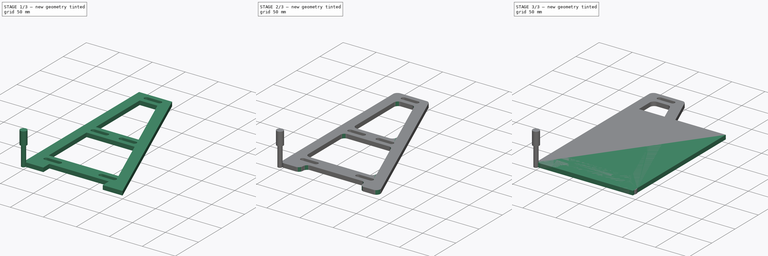
[diagram: build sequence overview — one tinted view per stage of 3, left to right]
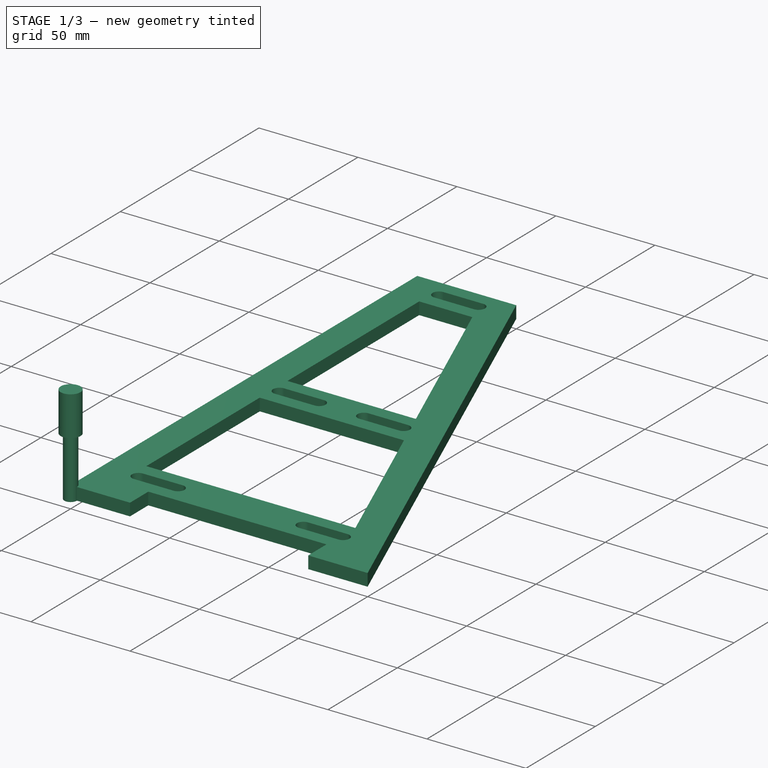
[diagram: stage 1 of 3 — iso view after this stage's code; geometry added in this stage tinted green]
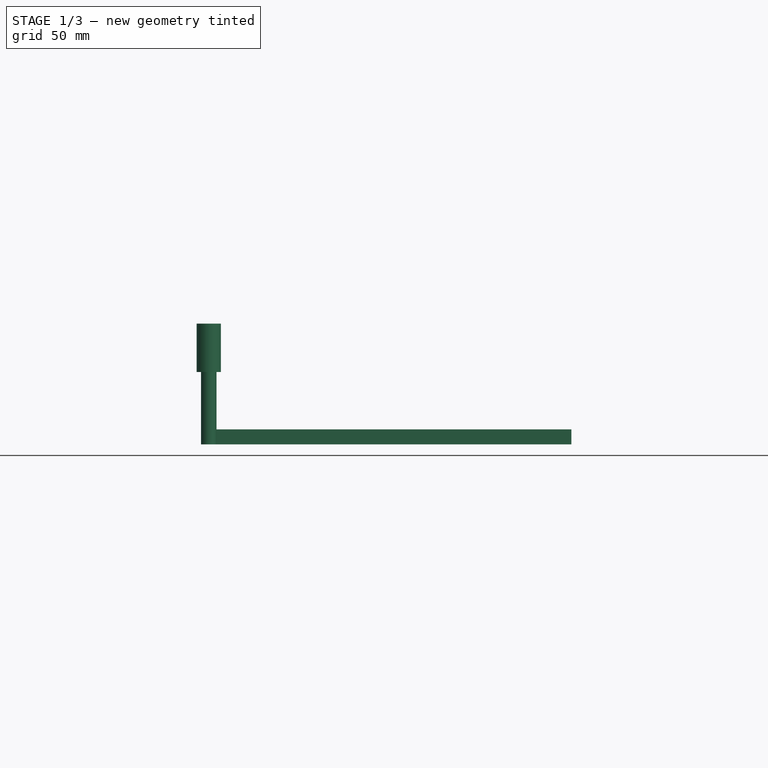
[diagram: stage 1 of 3 — front view after this stage's code; geometry added in this stage tinted green]
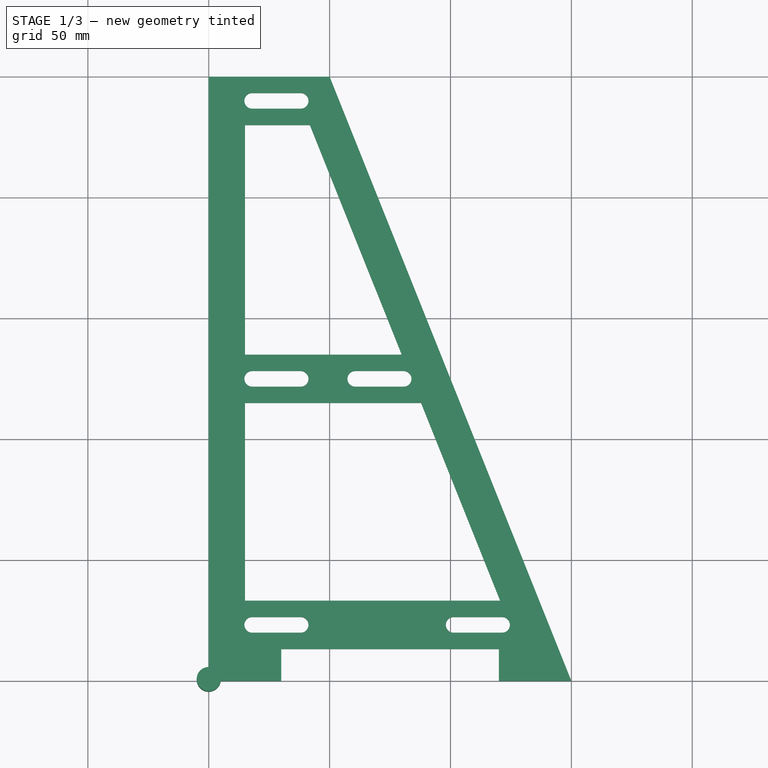
[diagram: stage 1 of 3 — top view after this stage's code; geometry added in this stage tinted green]
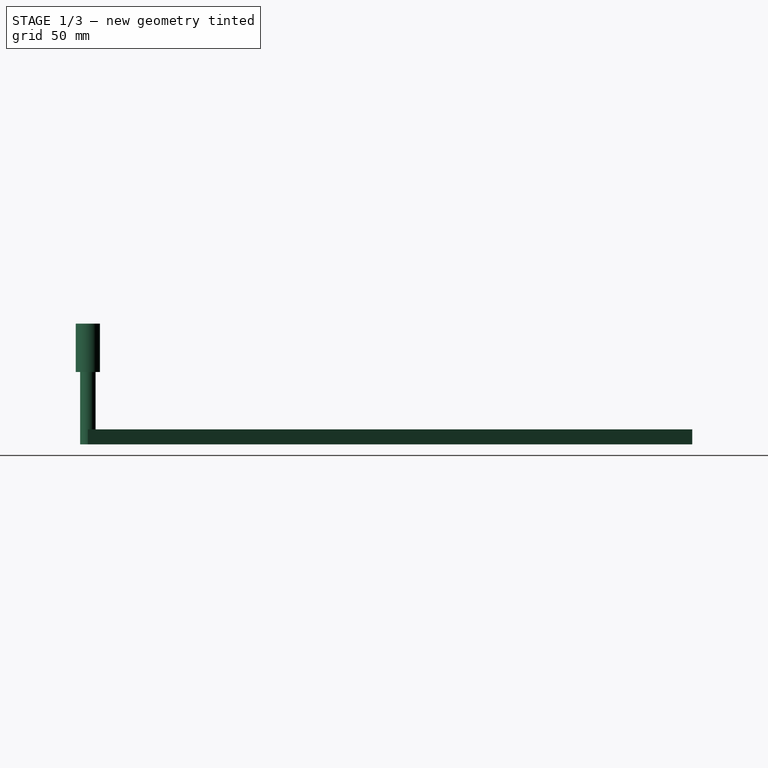
[diagram: stage 1 of 3 — right view after this stage's code; geometry added in this stage tinted green]
FCSTD DOCUMENT  (FreeCAD 0.20R27078 (Git))
Label: Stand
License: All rights reserved
LicenseURL: http://en.wikipedia.org/wiki/All_rights_reserved
objects: Path::FeaturePython×4, Part::FeaturePython×3, App::DocumentObjectGroup×2, Sketcher::SketchObject×1, PartDesign::Pad×1, PartDesign::Fillet×1, PartDesign::Body×1, App::FeaturePython×1, Path::FeatureCompoundPython×1, Spreadsheet::Sheet×1
note: 11 computed .brp shape members not serialized (recipe doc carries the construction recipe); baked Part::Feature solids carry a one-line shape summary decoded from their .brp

FEATURE [Sketcher::SketchObject] Sketch
  FullyConstrained = true
  MapMode = 5
  Support = -> [XY_Plane]
  expr: Constraints[26] = <<Spreadsheet>>.Height
  expr: Constraints[27] = <<Spreadsheet>>.Top
  expr: Constraints[29] = <<Spreadsheet>>.Bottom
  expr: Constraints[52] = <<Spreadsheet>>.SlotSize
  expr: Constraints[53] = <<Spreadsheet>>.Tool
  expr: Constraints[67] = <<Spreadsheet>>.Tool
  expr: Constraints[68] = <<Spreadsheet>>.Tool
  expr: Constraints[70] = <<Spreadsheet>>.SlotSize
  expr: Constraints[71] = <<Spreadsheet>>.SlotSize
  expr: Constraints[82] = <<Spreadsheet>>.Tool
  expr: Constraints[83] = <<Spreadsheet>>.SlotSize
  expr: Constraints[92] = <<Spreadsheet>>.SlotSize
  expr: Constraints[93] = <<Spreadsheet>>.Tool
  expr: Constraints[96] = <<Spreadsheet>>.SlotCentre
  sketch-geometry (36):
    g0: LineSegment StartX=0 StartY=250 StartZ=0 EndX=50 EndY=250 EndZ=0
    g1: LineSegment StartX=150 StartY=0 StartZ=0 EndX=120 EndY=0 EndZ=0
    g2: LineSegment StartX=0 StartY=0 StartZ=0 EndX=0 EndY=250 EndZ=0
    g3: LineSegment StartX=50 StartY=250 StartZ=0 EndX=150 EndY=0 EndZ=0
    g4: LineSegment StartX=15 StartY=230 StartZ=0 EndX=15 EndY=135 EndZ=0
    g5: LineSegment StartX=15 StartY=135 StartZ=0 EndX=79.8445 EndY=135 EndZ=0
    g6: LineSegment StartX=79.8445 StartY=135 StartZ=0 EndX=41.8445 EndY=230 EndZ=0
    g7: LineSegment StartX=41.8445 StartY=230 StartZ=0 EndX=15 EndY=230 EndZ=0
    g8: LineSegment StartX=15 StartY=115 StartZ=0 EndX=15 EndY=33.2 EndZ=0
    g9: LineSegment StartX=15 StartY=33.2 StartZ=0 EndX=120.565 EndY=33.2 EndZ=0
    g10: LineSegment StartX=120.565 StartY=33.2 StartZ=0 EndX=87.8445 EndY=115 EndZ=0
    g11: LineSegment StartX=87.8445 StartY=115 StartZ=0 EndX=15 EndY=115 EndZ=0
    g12: LineSegment StartX=120 StartY=0 StartZ=0 EndX=120 EndY=13.2 EndZ=0
    g13: LineSegment StartX=120 StartY=13.2 StartZ=0 EndX=30 EndY=13.2 EndZ=0
    g14: LineSegment StartX=30 StartY=13.2 StartZ=0 EndX=30 EndY=0 EndZ=0
    g15: LineSegment StartX=30 StartY=0 StartZ=0 EndX=0 EndY=0 EndZ=0
    g16: ArcOfCircle CenterX=18 CenterY=240 CenterZ=0 NormalX=0 NormalY=0 NormalZ=1 AngleXU=0 Radius=3.25 StartAngle=1.5708 EndAngle=4.71239
    g17: ArcOfCircle CenterX=38 CenterY=240 CenterZ=0 NormalX=0 NormalY=0 NormalZ=1 AngleXU=0 Radius=3.25 StartAngle=4.71239 EndAngle=7.85398
    g18: LineSegment StartX=18 StartY=236.75 StartZ=0 EndX=38 EndY=236.75 EndZ=0
    g19: LineSegment StartX=38 StartY=243.25 StartZ=0 EndX=18 EndY=243.25 EndZ=0
    g20: ArcOfCircle CenterX=60.6134 CenterY=125 CenterZ=0 NormalX=0 NormalY=0 NormalZ=1 AngleXU=0 Radius=3.25 StartAngle=1.5708 EndAngle=4.71239
    g21: ArcOfCircle CenterX=80.6134 CenterY=125 CenterZ=0 NormalX=0 NormalY=0 NormalZ=1 AngleXU=0 Radius=3.25 StartAngle=4.71239 EndAngle=7.85398
    g22: LineSegment StartX=60.6134 StartY=121.75 StartZ=0 EndX=80.6134 EndY=121.75 EndZ=0
    g23: LineSegment StartX=80.6134 StartY=128.25 StartZ=0 EndX=60.6134 EndY=128.25 EndZ=0
    g24: ArcOfCircle CenterX=18 CenterY=125 CenterZ=0 NormalX=0 NormalY=0 NormalZ=1 AngleXU=0 Radius=3.25 StartAngle=1.5708 EndAngle=4.71239
    g25: ArcOfCircle CenterX=38 CenterY=125 CenterZ=0 NormalX=0 NormalY=0 NormalZ=1 AngleXU=0 Radius=3.25 StartAngle=4.71239 EndAngle=7.85398
    g26: LineSegment StartX=18 StartY=121.75 StartZ=0 EndX=38 EndY=121.75 EndZ=0
    g27: LineSegment StartX=38 StartY=128.25 StartZ=0 EndX=18 EndY=128.25 EndZ=0
    g28: ArcOfCircle CenterX=18 CenterY=23.2 CenterZ=0 NormalX=0 NormalY=0 NormalZ=1 AngleXU=0 Radius=3.25 StartAngle=1.5708 EndAngle=4.71239
    g29: ArcOfCircle CenterX=38 CenterY=23.2 CenterZ=0 NormalX=0 NormalY=0 NormalZ=1 AngleXU=0 Radius=3.25 StartAngle=4.71239 EndAngle=7.85398
    g30: LineSegment StartX=18 StartY=19.95 StartZ=0 EndX=38 EndY=19.95 EndZ=0
    g31: LineSegment StartX=38 StartY=26.45 StartZ=0 EndX=18 EndY=26.45 EndZ=0
    g32: ArcOfCircle CenterX=101.333 CenterY=23.2 CenterZ=0 NormalX=0 NormalY=0 NormalZ=1 AngleXU=0 Radius=3.25 StartAngle=1.5708 EndAngle=4.71239
    g33: ArcOfCircle CenterX=121.333 CenterY=23.2 CenterZ=0 NormalX=0 NormalY=0 NormalZ=1 AngleXU=0 Radius=3.25 StartAngle=4.71239 EndAngle=7.85398
    g34: LineSegment StartX=101.333 StartY=19.95 StartZ=0 EndX=121.333 EndY=19.95 EndZ=0
    g35: LineSegment StartX=121.333 StartY=26.45 StartZ=0 EndX=101.333 EndY=26.45 EndZ=0
  constraints (97):
    c: Coincident(g15,g2)
    c: Coincident(g2,g0)
    c: Horizontal(g0)
    c: Horizontal(g1)
    c: Vertical(g2)
    c: Vertical(g4)
    c: Coincident(g4,g5)
    c: Horizontal(g5)
    c: Coincident(g5,g6)
    c: Coincident(g6,g7)
    c: Coincident(g7,g4)
    c: Vertical(g8)
    c: Coincident(g8,g9)
    c: Coincident(g9,g10)
    c: Coincident(g10,g11)
    c: Coincident(g11,g8)
    c: Horizontal(g11)
    c: Coincident(g12,g13)
    c: Coincident(g13,g14)
    c: Horizontal(g13)
    c: Vertical(g12)
    c: Vertical(g14)
    c: Coincident(g15,g-1)
    c: Coincident(g0,g3)
    c: Parallel(g3,g10)
    c: Parallel(g3,g6)
    c: DistanceY(g2,g2) = 250
    c: DistanceX(g0,g0) = 50
    c: Coincident(g3,g1)
    c: DistanceX(g2,g1) = 150
    c: DistanceX(g15,g15) = 30
    c: DistanceX(g1,g1) = 30
    c: Coincident(g12,g1)
    c: Parallel(g13,g9)
    c: Parallel(g5,g7)
    c: Coincident(g14,g15)
    c: DistanceY(g14,g13) = 13.2
    c: DistanceY(g13,g8) = 20
    c: DistanceY(g8,g4) = 20
    c: DistanceY(g4,g0) = 20
    c: DistanceX(g2,g8) = 15
    c: DistanceX(g2,g4) = 15
    c: Horizontal(g15)
    c: Distance(g5,g3) = 15
    c: Distance(g10,g3) = 15
    c: DistanceY(g1,g2) = 0
    c: Tangent(g16,g18) = -1.5708
    c: Tangent(g18,g17) = -1.5708
    c: Tangent(g17,g19) = -1.5708
    c: Tangent(g19,g16) = -1.5708
    c: Equal(g16,g17)
    c: Horizontal(g18)
    c: DistanceX(g16,g17) = 20
    c: Diameter(g17) = 6.5
    c: DistanceY(g4,g16) = 10
    c: DistanceX(g0,g16) = 18
    c: Tangent(g20,g22) = -1.5708
    c: Tangent(g22,g21) = -1.5708
    c: Tangent(g21,g23) = -1.5708
    c: Tangent(g23,g20) = -1.5708
    c: Equal(g20,g21)
    c: Horizontal(g22)
    c: Tangent(g24,g26) = -1.5708
    c: Tangent(g26,g25) = -1.5708
    c: Tangent(g25,g27) = -1.5708
    c: Tangent(g27,g24) = -1.5708
    c: Equal(g24,g25)
    c: Diameter(g21) = 6.5
    c: Diameter(g24) = 6.5
    c: Parallel(g27,g5)
    c: DistanceX(g20,g21) = 20
    c: DistanceX(g24,g25) = 20
    c: DistanceX(g2,g24) = 18
    c: Distance(g21,g3) = 18
    c: DistanceY(g8,g24) = 10
    c: DistanceY(g10,g21) = 10
    c: Tangent(g28,g30) = -1.5708
    c: Tangent(g30,g29) = -1.5708
    c: Tangent(g29,g31) = -1.5708
    c: Tangent(g31,g28) = -1.5708
    c: Equal(g28,g29)
    c: Horizontal(g30)
    c: Diameter(g29) = 6.5
    c: DistanceX(g28,g29) = 20
    c: DistanceX(g2,g28) = 18
    c: DistanceY(g13,g28) = 10
    c: Tangent(g32,g34) = -1.5708
    c: Tangent(g34,g33) = -1.5708
    c: Tangent(g33,g35) = -1.5708
    c: Tangent(g35,g32) = -1.5708
    c: Equal(g32,g33)
    c: Horizontal(g34)
    c: DistanceX(g32,g33) = 20
    c: Diameter(g33) = 6.5
    c: Distance(g33,g3) = 18
    c: DistanceY(g12,g33) = 10
    c: DistanceY(g2,g24) = 125
FEATURE [PartDesign::Pad] Pad
  Direction = (0,0,1)
  Length = 6.25
  Length2 = 100
  Profile = -> Sketch
  ReferenceAxis = -> Sketch [N_Axis]
  Type = 0
  expr: Length = <<Spreadsheet>>.Thickness
FEATURE [Part::FeaturePython] ToolBit001  label="6.4mm Endmill"  # Path/CAM toolbit (typed FeaturePython)
  BitPropertyNames = Chipload | CuttingEdgeHeight | Diameter | Flutes | Length | Material | ShankDiameter
  BitShape = <path>
  Chipload = 0
  CuttingEdgeHeight = 30
  Diameter = 6.4
  File = <userpath>/MensShed/CNCRouter/FreeCAD/Bit/6.4mm_Endmill.fctb
  Flutes = 0
  Length = 50
  Material = 0
  ShankDiameter = 10
  ShapeName = endmill
FEATURE [Path::FeaturePython] __4mm_Endmill  label="6.4mm Endmill001"  # Path/CAM operation (typed FeaturePython)
  HorizFeed = 10
  HorizRapid = 0
  SpindleDir = 0
  SpindleSpeed = 10000
  Tool = -> ToolBit001
  ToolNumber = 2
  VertFeed = 10
  VertRapid = 0
  expr: HorizRapid = SetupSheet.HorizRapid
  expr: VertRapid = SetupSheet.VertRapid
FEATURE [App::DocumentObjectGroup] Tools
  Group = -> [__4mm_Endmill]
FEATURE [Path::FeaturePython] Profile  label="Outside"  # Path/CAM operation (typed FeaturePython)
  Active = true
  AreaParams:
    Tolerance = 1e-07
    FitArcs = True
    Simplify = False
    CleanDistance = 0.0
    Accuracy = 0.01
    Unit = 1.0
    MinArcPoints = 4
    MaxArcPoints = 100
    ClipperScale = 10000000.0
    Fill = 0
    Coplanar = 0
    Reorient = True
    Outline = False
    Explode = False
    OpenMode = 0
    Deflection = 0.01
    SubjectFill = 0
    ClipFill = 0
    Offset = 3.2
    ExtraPass = 0
    Stepover = 0.0
    LastStepover = 0.0
    JoinType = 0
    EndType = 0
    MiterLimit = 2.0
    RoundPrecision = 0.0
    PocketMode = 0
    ToolRadius = 1.0
    PocketExtraOffset = 0.0
    PocketStepover = 0.0
    PocketLastStepover = 0.0
    FromCenter = False
    Angle = 45.0
    AngleShift = 0.0
    Shift = 0.0
    Thicken = False
    SectionCount = -1
    Stepdown = 1.0
    SectionOffset = 0.0
    SectionTolerance = 1e-06
    SectionMode = 2
    Project = False
  ClearanceHeight = 11.25
  CoolantMode = None
  CycleTime = 00:04:01
  Direction = 0
  FinalDepth = 0
  HandleMultipleFeatures = 0
  JoinType = 0
  MiterLimit = 0.1
  OffsetExtra = 0
  OpFinalDepth = 0
  OpStartDepth = 6.25
  OpStockZMax = 6.25
  OpStockZMin = 0
  OpToolDiameter = 6.4
  PathParams = {'orientation': 1, 'feedrate': 10.0, 'feedrate_v': 10.0, 'verbose': True, 'resume_height': 9.25, 'retraction': 11.25, 'return_end': True, 'preamble': False}
  SafeHeight = 9.25
  Side = 0
  StartDepth = 6.25
  StartPoint = (0,0,0)
  StepDown = 3
  ToolController = -> __4mm_Endmill
  UseComp = true
  UseStartPoint = false
  processCircles = false
  processHoles = false
  processPerimeter = true
  expr: ClearanceHeight = OpStockZMax + SetupSheet.ClearanceHeightOffset
  expr: FinalDepth = OpFinalDepth
  expr: SafeHeight = OpStockZMax + SetupSheet.SafeHeightOffset
  expr: StartDepth = OpStartDepth
  expr: StepDown = 3
FEATURE [Path::FeaturePython] Profile001  label="Inside"  # Path/CAM operation (typed FeaturePython)
  Active = true
  AreaParams:
    Tolerance = 1e-07
    FitArcs = True
    Simplify = False
    CleanDistance = 0.0
    Accuracy = 0.01
    Unit = 1.0
    MinArcPoints = 4
    MaxArcPoints = 100
    ClipperScale = 10000000.0
    Fill = 0
    Coplanar = 0
    Reorient = True
    Outline = False
    Explode = False
    OpenMode = 0
    Deflection = 0.01
    SubjectFill = 0
    ClipFill = 0
    Offset = -3.2
    ExtraPass = 0
    Stepover = 0.0
    LastStepover = 0.0
    JoinType = 0
    EndType = 0
    MiterLimit = 2.0
    RoundPrecision = 0.0
    PocketMode = 0
    ToolRadius = 1.0
    PocketExtraOffset = 0.0
    PocketStepover = 0.0
    PocketLastStepover = 0.0
    FromCenter = False
    Angle = 45.0
    AngleShift = 0.0
    Shift = 0.0
    Thicken = False
    SectionCount = -1
    Stepdown = 1.0
    SectionOffset = 0.0
    SectionTolerance = 1e-06
    SectionMode = 2
    Project = False
  Base = -> [Clone]
  ClearanceHeight = 11.25
  CoolantMode = None
  CycleTime = 00:04:40
  Direction = 0
  FinalDepth = 0
  HandleMultipleFeatures = 0
  JoinType = 0
  MiterLimit = 0.1
  OffsetExtra = 0
  OpFinalDepth = 6.25
  OpStartDepth = 9.25
  OpStockZMax = 6.25
  OpStockZMin = 0
  OpToolDiameter = 6.4
  PathParams = {'orientation': 1, 'feedrate': 10.0, 'feedrate_v': 10.0, 'verbose': True, 'resume_height': 9.25, 'retraction': 11.25, 'return_end': True, 'preamble': False, 'start': Vector (38.04182585126915, 138.20000014999994, 11.25)}
  SafeHeight = 9.25
  Side = 1
  StartDepth = 6.25
  StartPoint = (0,0,0)
  StepDown = 3
  ToolController = -> __4mm_Endmill
  UseComp = true
  UseStartPoint = false
  processCircles = false
  processHoles = false
  processPerimeter = true
  expr: ClearanceHeight = OpStockZMax + SetupSheet.ClearanceHeightOffset
  expr: FinalDepth = 0
  expr: SafeHeight = OpStockZMax + SetupSheet.SafeHeightOffset
  expr: StartDepth = 6.25
  expr: StepDown = 3
FEATURE [Path::FeatureCompoundPython] Operations  # Path/CAM operation (typed FeaturePython)
  Group = -> [Profile,Profile001]
  UsePlacements = false
FEATURE [Path::FeaturePython] Job  # Path/CAM operation (typed FeaturePython)
  CycleTime = 00:08:41
  Fixtures = G54
  GeometryTolerance = 0.01
  Model = -> Model
  Operations = -> Operations
  OrderOutputBy = 0
  PostProcessor = 7
  PostProcessorOutputFile = %D/%d
  SetupSheet = -> SetupSheet
  SplitOutput = false
  Stock = -> Stock001
  Tools = -> Tools
FEATURE [Spreadsheet::Sheet] Spreadsheet
  cells = A2=Material Thickness; B2(Thickness)=6.25; A3=Tool Size; B3(Tool)=6.5; A5=Height; B5(Height)=250; A6=Bottom Width; B6(Bottom)=150; A7=Top Width; B7(Top)=50; A8=SlotSize; B8(SlotSize)=20; A9=TongueSize; B9(TongueSize)==B8 + B3; A10=Centre; B10(SlotCentre)==B5 / 2
note: 1 file-system path scrubbed to <path> (originals preserved in the JSON sidecar)
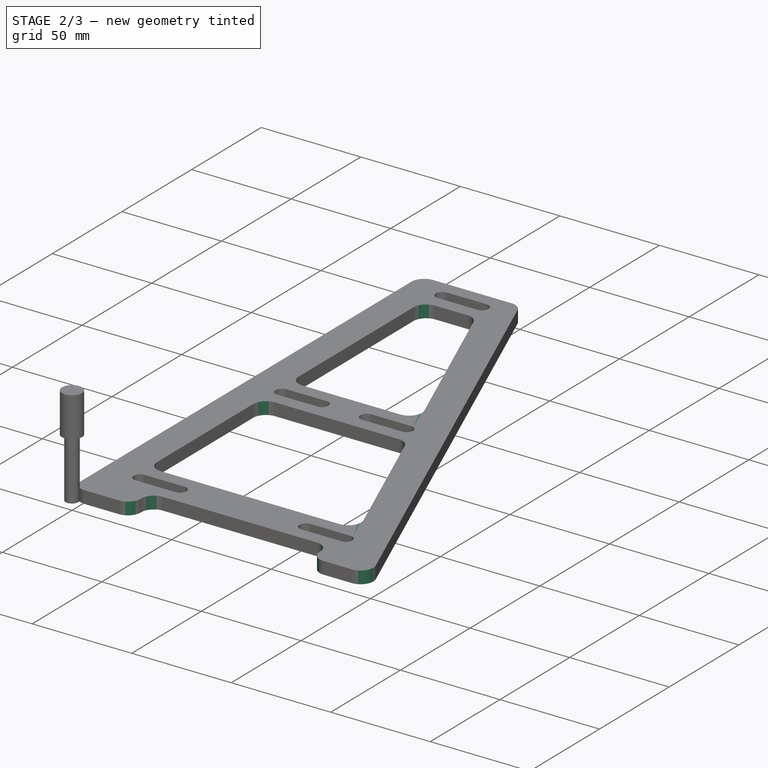
[diagram: stage 2 of 3 — iso view after this stage's code; geometry added in this stage tinted green]
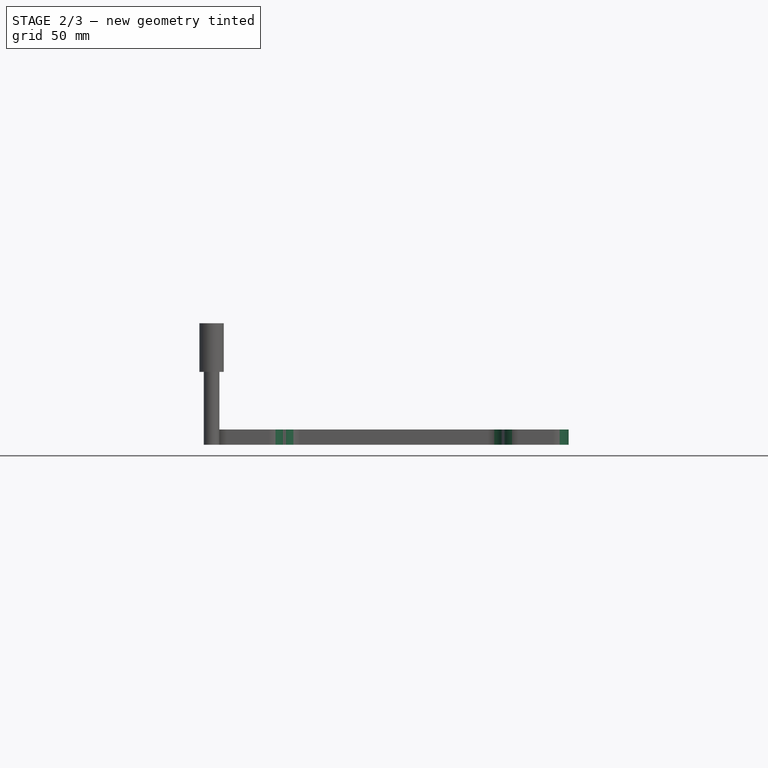
[diagram: stage 2 of 3 — front view after this stage's code; geometry added in this stage tinted green]
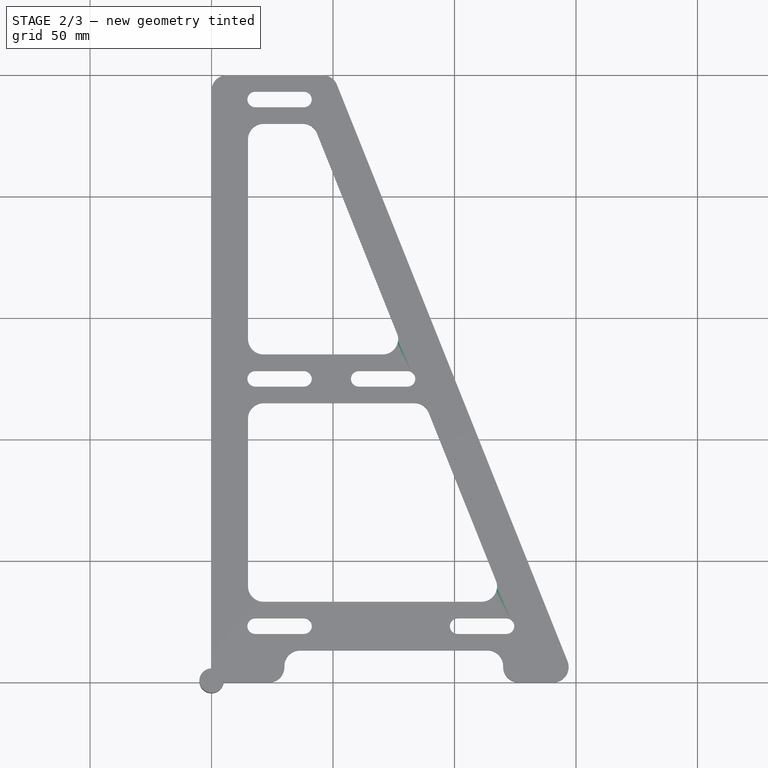
[diagram: stage 2 of 3 — top view after this stage's code; geometry added in this stage tinted green]
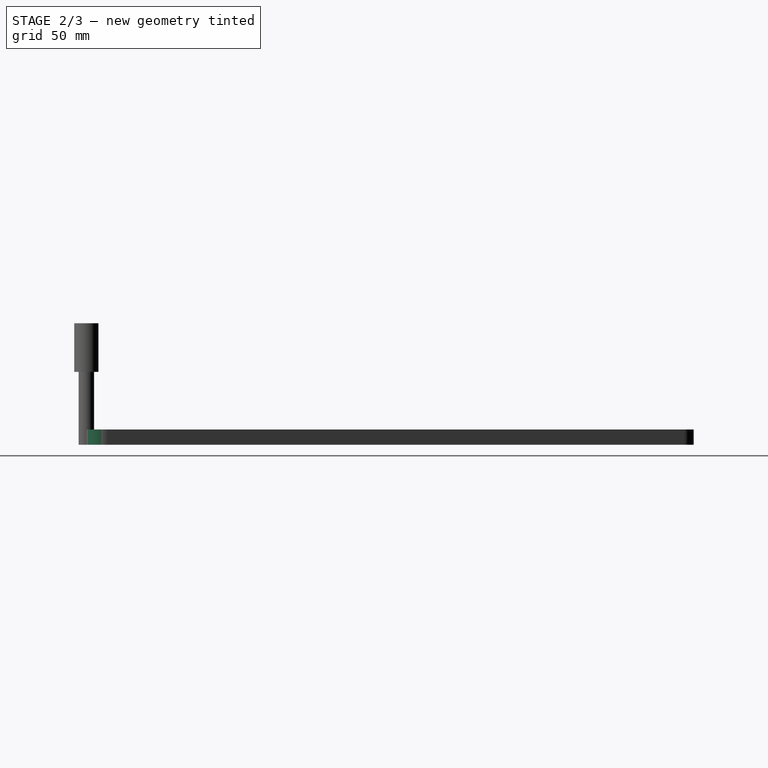
[diagram: stage 2 of 3 — right view after this stage's code; geometry added in this stage tinted green]
FEATURE [PartDesign::Fillet] Fillet
  Base = -> Pad [Edge20,Edge2,Edge1,Edge5,Edge8,Edge17,Edge44,Edge37,Edge32,Edge25,Edge38,Edge26,Edge29,Edge41,Edge14,Edge11]
  BaseFeature = -> Pad
  Radius = 6.4
  SupportTransform = false
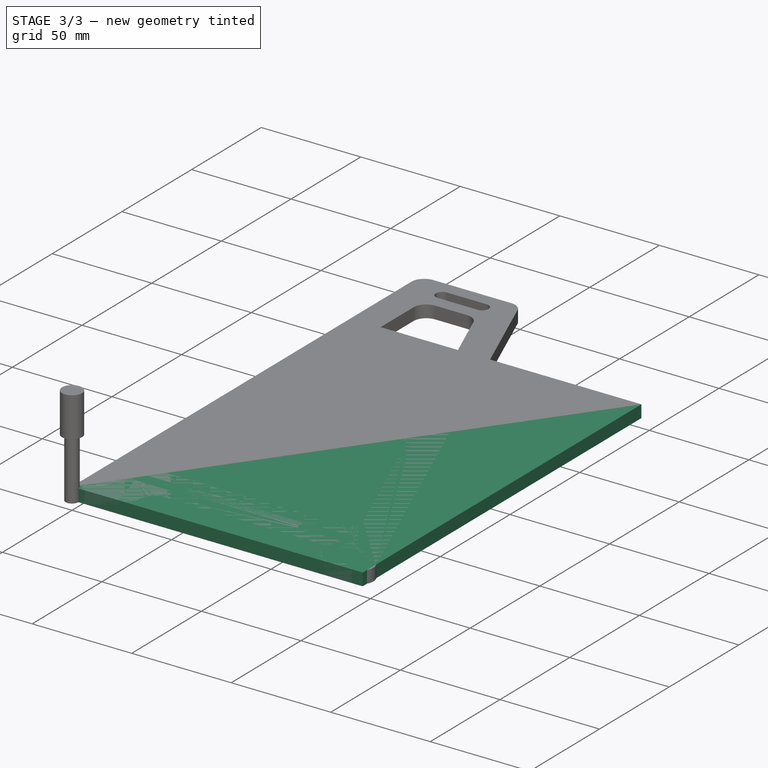
[diagram: stage 3 of 3 — iso view after this stage's code; geometry added in this stage tinted green]
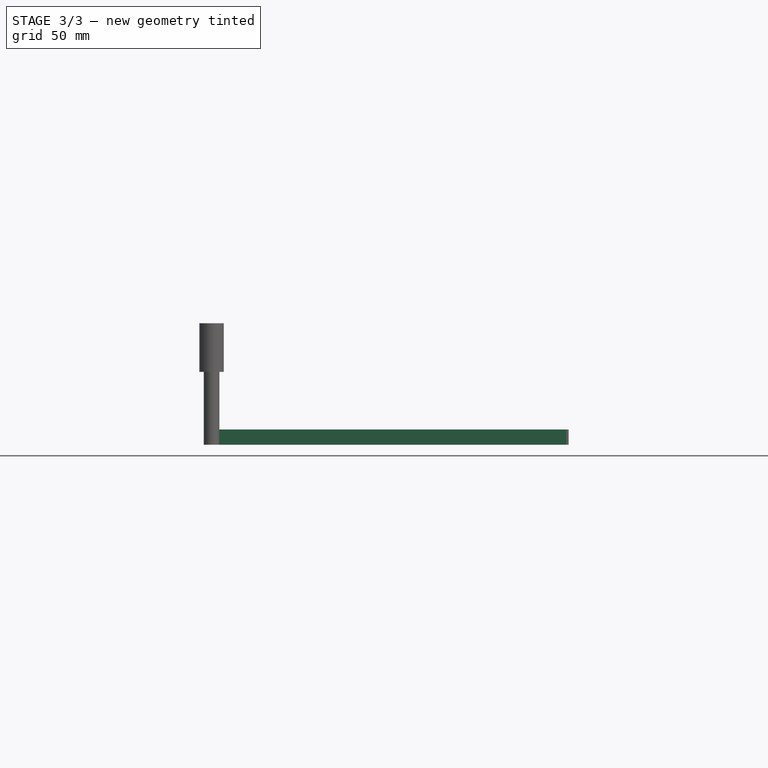
[diagram: stage 3 of 3 — front view after this stage's code; geometry added in this stage tinted green]
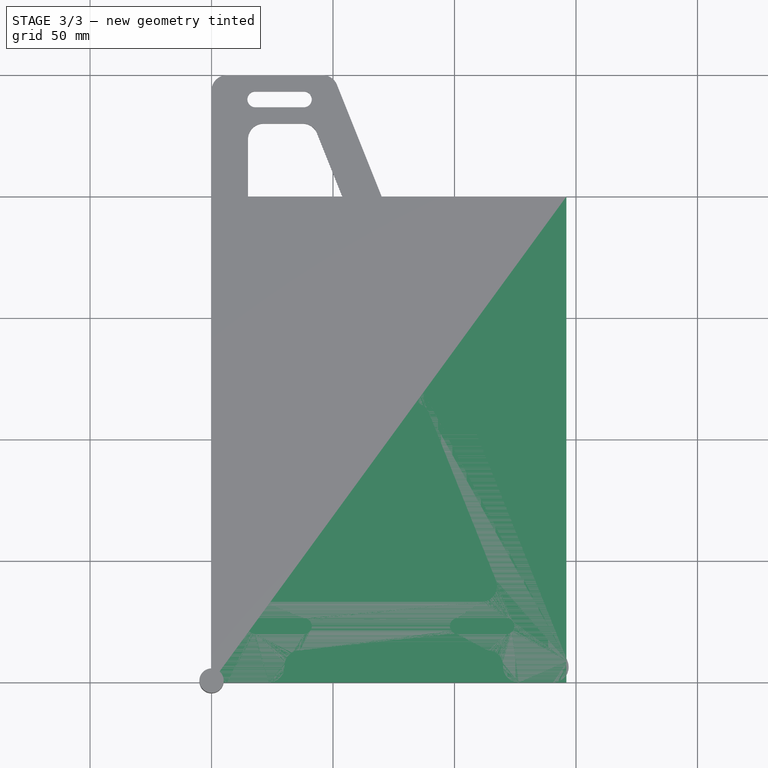
[diagram: stage 3 of 3 — top view after this stage's code; geometry added in this stage tinted green]
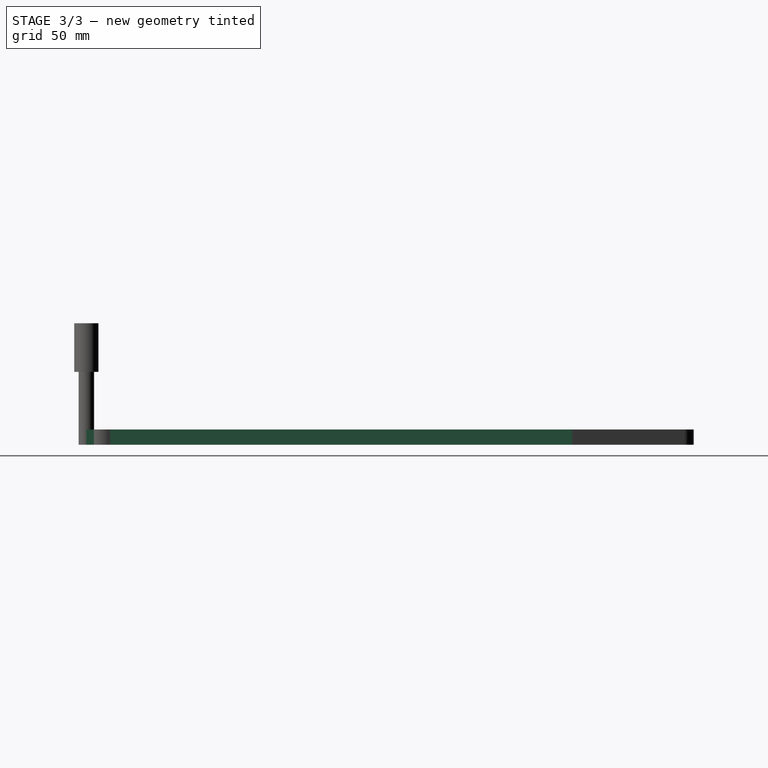
[diagram: stage 3 of 3 — right view after this stage's code; geometry added in this stage tinted green]
FEATURE [PartDesign::Body] Body
  Group = -> [Sketch,Pad,Fillet]
  Origin = -> Origin
  Tip = -> Fillet
FEATURE [App::FeaturePython] SetupSheet  # Path/CAM operation (typed FeaturePython)
  ClearanceHeightExpression = OpStockZMax+SetupSheet.ClearanceHeightOffset
  ClearanceHeightOffset = 5
  CoolantMode = 0
  CoolantModes = None | Flood | Mist
  FinalDepthExpression = OpFinalDepth
  HorizRapid = 0
  SafeHeightExpression = OpStockZMax+SetupSheet.SafeHeightOffset
  SafeHeightOffset = 3
  StartDepthExpression = OpStartDepth
  StepDownExpression = OpToolDiameter
  VertRapid = 0
FEATURE [Part::FeaturePython] Clone  label="Model-Body"  # Draft clone (typed FeaturePython)
  AttacherType = Attacher::AttachEngine3D
  Fuse = false
  Objects = -> [Body]
  PathResource = Model
  Scale = (1,1,1)
FEATURE [App::DocumentObjectGroup] Model
  Group = -> [Clone]
FEATURE [Part::FeaturePython] Stock001  # WARN: FeaturePython — macro-defined, semantics opaque (R4)
  Height = 6.25
  Length = 146.04
  Placement = pos=(-1e-15,-2.8e-14,0) rot=(0,0,1;0rad)
  StockType = CreateBox
  Width = 200
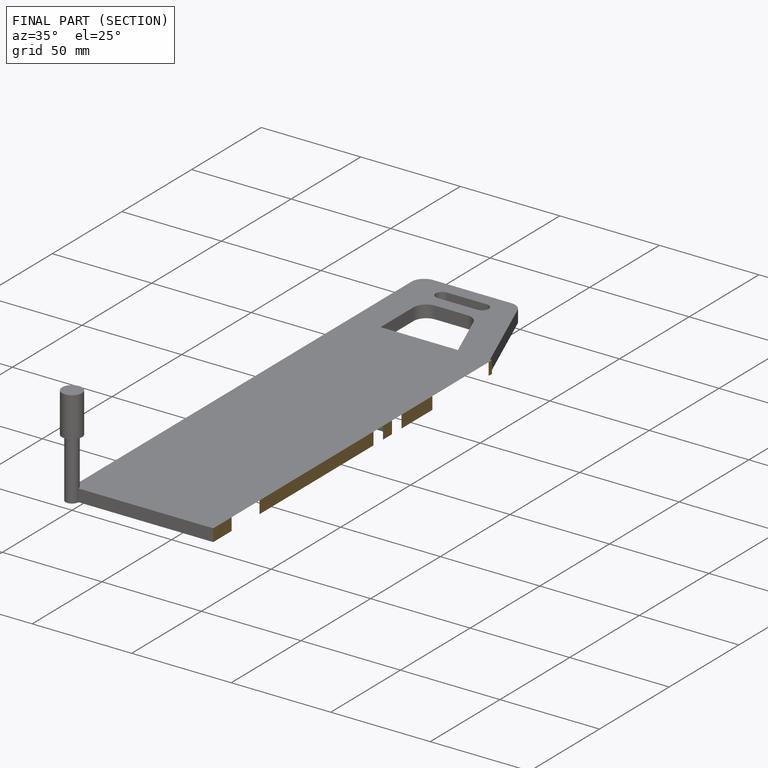
[diagram: finished part — half-section view (interior)]
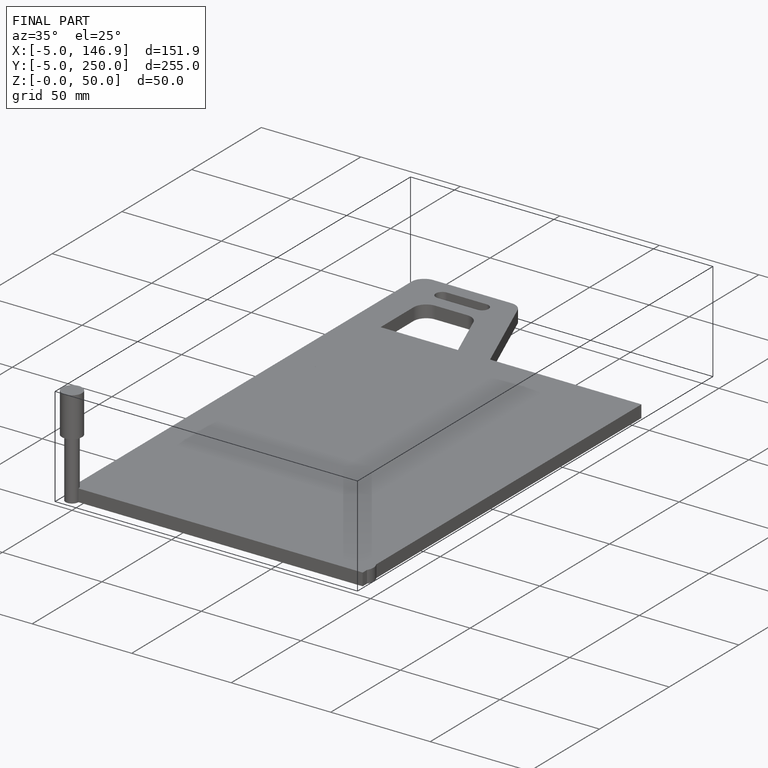
[diagram: finished part — iso view with bounding-box wireframe]
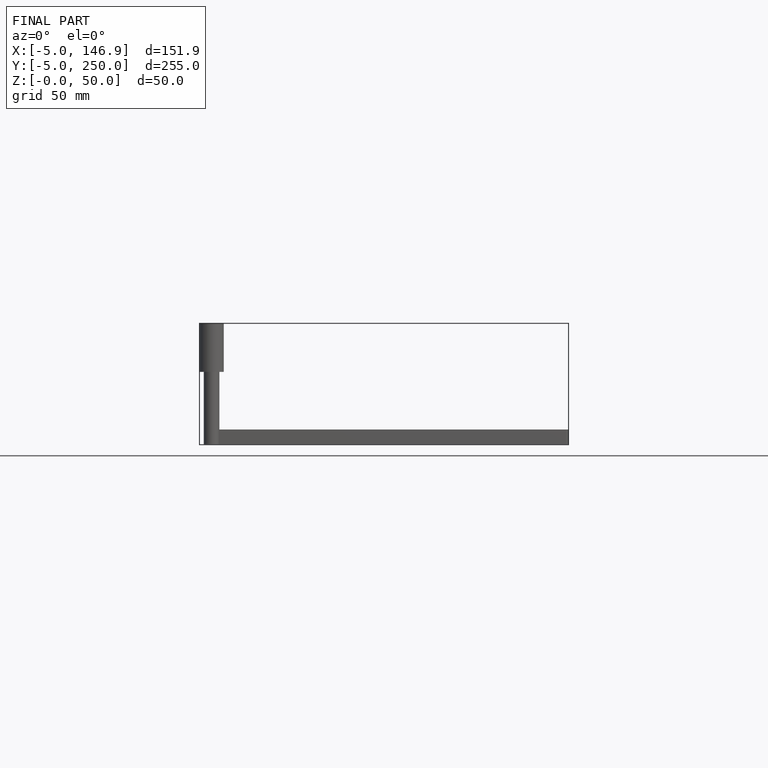
[diagram: finished part — front view with bounding-box wireframe]
